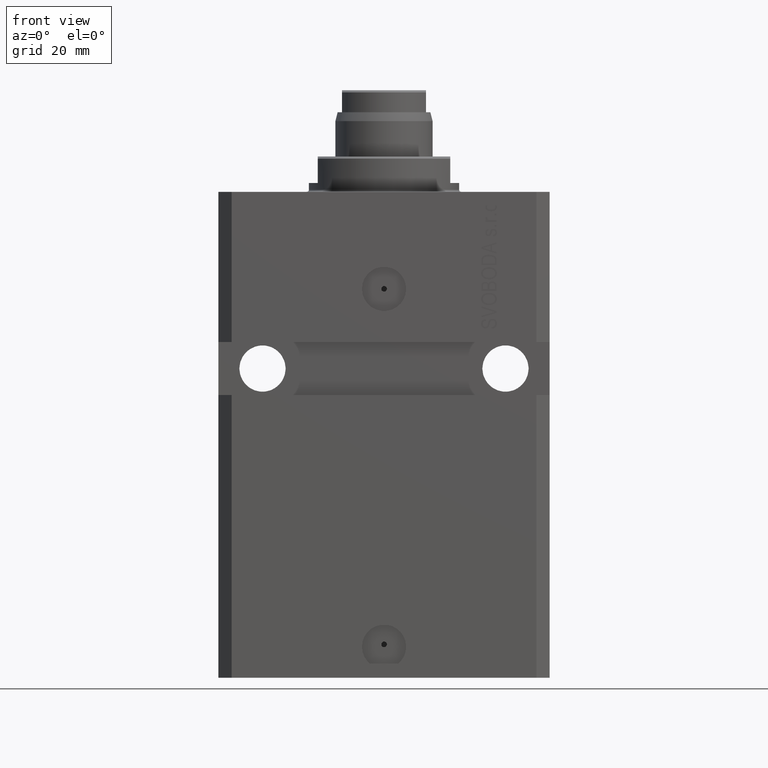
[diagram: clean part render]
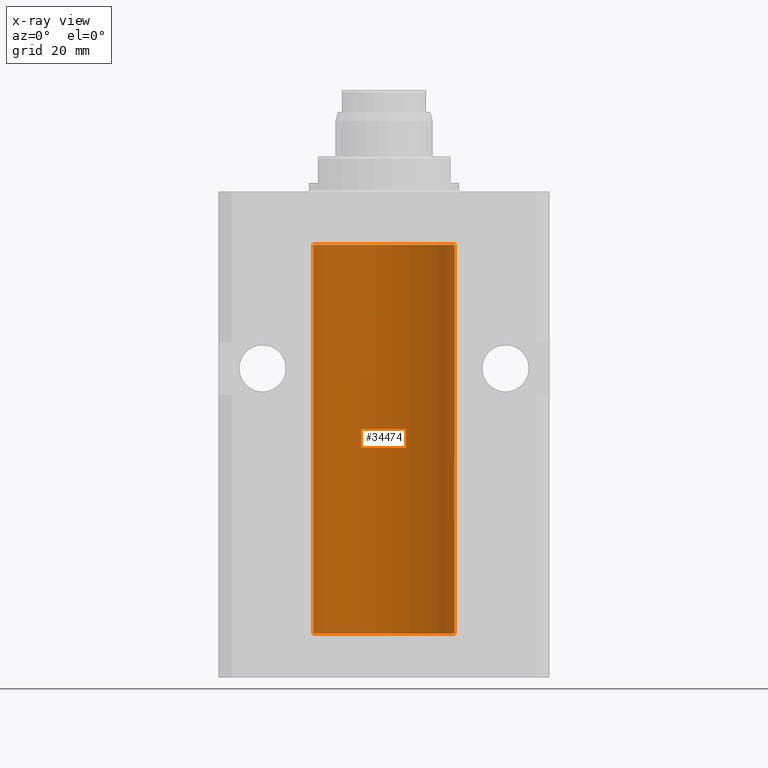
[diagram: x-ray — body ghosted, one internal face saturated and labeled with its STEP entity id]
A machine part, front view, then the same camera in x-ray: the body is ghosted and one INTERNAL B-rep face — a face not visible from any outside direction — is saturated and labeled: STEP entity #34474.
In plain terms, the highlighted cylindrical surface (partial cylindrical patch) has radius 16 mm, axis along (0, 0, 1).
Its self-contained STEP definition (entity closure, byte-faithful):
#1492 = LINE ( 'NONE', #40336, #39023 ) ;
#6108 = VERTEX_POINT ( 'NONE', #40489 ) ;
#6226 = ORIENTED_EDGE ( 'NONE', *, *, #30968, .T. ) ;
#8033 = VERTEX_POINT ( 'NONE', #26456 ) ;
#10687 = CARTESIAN_POINT ( 'NONE',  ( 16.00000000000000000, 0.000000000000000000, -99.99999999999998579 ) ) ;
#11768 = EDGE_CURVE ( 'NONE', #8033, #6108, #37891, .T. ) ;
#12603 = ORIENTED_EDGE ( 'NONE', *, *, #25433, .F. ) ;
#13084 = CARTESIAN_POINT ( 'NONE',  ( 0.000000000000000000, 0.000000000000000000, -99.99999999999998579 ) ) ;
#14243 = CARTESIAN_POINT ( 'NONE',  ( 0.000000000000000000, 0.000000000000000000, -99.99999999999998579 ) ) ;
#14292 = ORIENTED_EDGE ( 'NONE', *, *, #29338, .T. ) ;
#14468 = DIRECTION ( 'NONE',  ( 0.000000000000000000, 0.000000000000000000, 1.000000000000000000 ) ) ;
#17226 = DIRECTION ( 'NONE',  ( -0.000000000000000000, -0.000000000000000000, 1.000000000000000000 ) ) ;
#17258 = DIRECTION ( 'NONE',  ( 1.000000000000000000, 0.000000000000000000, 0.000000000000000000 ) ) ;
#18187 = VECTOR ( 'NONE', #17226, 1000.000000000000000 ) ;
#19690 = DIRECTION ( 'NONE',  ( -0.000000000000000000, -0.000000000000000000, 1.000000000000000000 ) ) ;
#20677 = AXIS2_PLACEMENT_3D ( 'NONE', #14243, #14468, #42791 ) ;
#21381 = ORIENTED_EDGE ( 'NONE', *, *, #11768, .F. ) ;
#25433 = EDGE_CURVE ( 'NONE', #6108, #34093, #1492, .T. ) ;
#26456 = CARTESIAN_POINT ( 'NONE',  ( 16.00000000000000000, 0.000000000000000000, -99.99999999999998579 ) ) ;
#26683 = CARTESIAN_POINT ( 'NONE',  ( 16.00000000000000000, 0.000000000000000000, -12.00000000000000000 ) ) ;
#28904 = VERTEX_POINT ( 'NONE', #26683 ) ;
#29338 = EDGE_CURVE ( 'NONE', #8033, #28904, #31988, .T. ) ;
#30204 = DIRECTION ( 'NONE',  ( 1.000000000000000000, 0.000000000000000000, 0.000000000000000000 ) ) ;
#30643 = DIRECTION ( 'NONE',  ( -0.000000000000000000, -0.000000000000000000, 1.000000000000000000 ) ) ;
#30968 = EDGE_CURVE ( 'NONE', #28904, #34093, #39861, .T. ) ;
#31101 = FACE_OUTER_BOUND ( 'NONE', #40295, .T. ) ;
#31988 = LINE ( 'NONE', #10687, #18187 ) ;
#34093 = VERTEX_POINT ( 'NONE', #44977 ) ;
#34474 = ADVANCED_FACE ( 'NONE', ( #31101 ), #42087, .F. ) ;
#37891 = CIRCLE ( 'NONE', #20677, 16.00000000000000000 ) ;
#39023 = VECTOR ( 'NONE', #19690, 1000.000000000000000 ) ;
#39861 = CIRCLE ( 'NONE', #45178, 16.00000000000000000 ) ;
#40295 = EDGE_LOOP ( 'NONE', ( #12603, #21381, #14292, #6226 ) ) ;
#40336 = CARTESIAN_POINT ( 'NONE',  ( -16.00000000000000000, 1.959434878635765131E-15, -99.99999999999998579 ) ) ;
#40489 = CARTESIAN_POINT ( 'NONE',  ( -16.00000000000000000, 1.959434878635765131E-15, -99.99999999999998579 ) ) ;
#40695 = AXIS2_PLACEMENT_3D ( 'NONE', #13084, #30643, #17258 ) ;
#40740 = DIRECTION ( 'NONE',  ( 0.000000000000000000, 0.000000000000000000, 1.000000000000000000 ) ) ;
#40973 = CARTESIAN_POINT ( 'NONE',  ( 0.000000000000000000, 0.000000000000000000, -12.00000000000000000 ) ) ;
#42087 = CYLINDRICAL_SURFACE ( 'NONE', #40695, 16.00000000000000000 ) ;
#42791 = DIRECTION ( 'NONE',  ( 1.000000000000000000, 0.000000000000000000, 0.000000000000000000 ) ) ;
#44977 = CARTESIAN_POINT ( 'NONE',  ( -16.00000000000000000, 1.959434878635765131E-15, -12.00000000000000000 ) ) ;
#45178 = AXIS2_PLACEMENT_3D ( 'NONE', #40973, #40740, #30204 ) ;